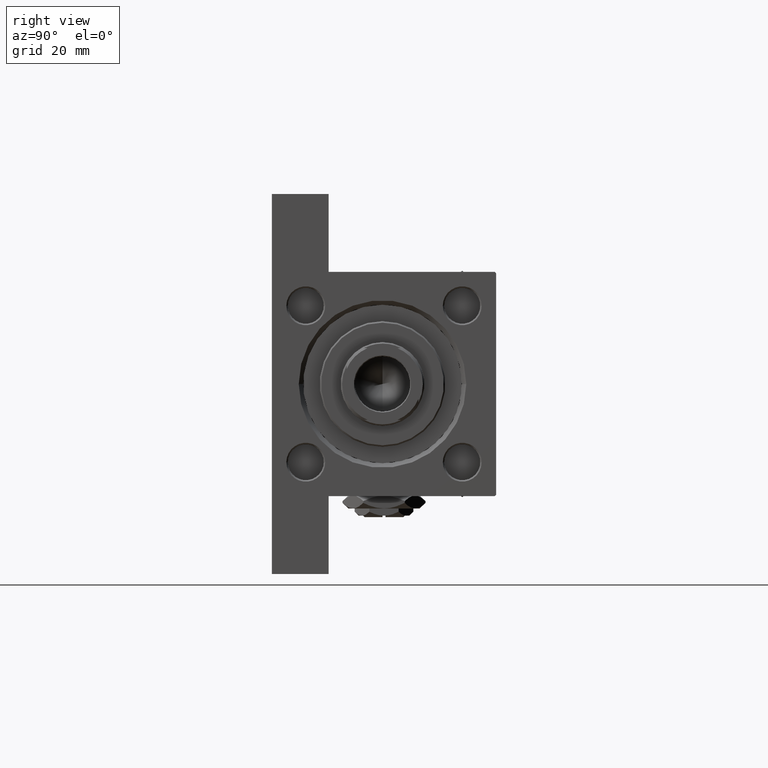
[diagram: clean part render]
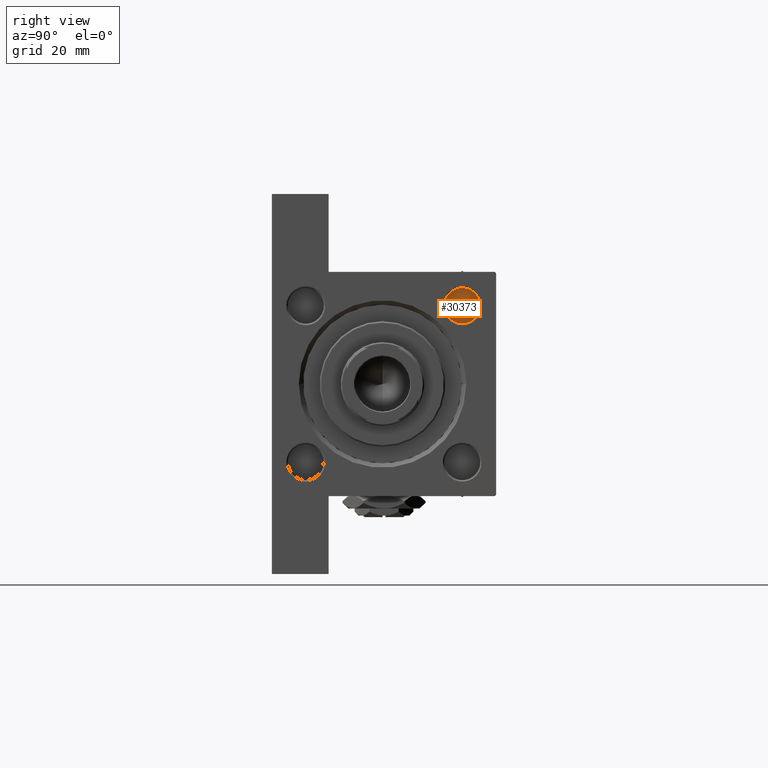
[diagram: same view with one face highlighted and labeled with its STEP entity id]
A machine part, right view. The second image highlights one B-rep face of the part: STEP entity #30373.
In plain terms, the highlighted planar face has unit normal (1, 0, 0).
Its self-contained STEP definition (entity closure, byte-faithful):
#448 = DIRECTION ( 'NONE',  ( 1.000000000000000000, 0.000000000000000000, 0.000000000000000000 ) ) ;
#3893 = CARTESIAN_POINT ( 'NONE',  ( 142.0000000000000000, -26.14999999999999147, 32.15000000000000568 ) ) ;
#4973 = DIRECTION ( 'NONE',  ( 0.000000000000000000, 0.000000000000000000, -1.000000000000000000 ) ) ;
#7736 = PLANE ( 'NONE',  #18364 ) ;
#8102 = EDGE_CURVE ( 'NONE', #47704, #18156, #40112, .T. ) ;
#12052 = CARTESIAN_POINT ( 'NONE',  ( 142.0000000000000000, -26.14999999999999147, 20.14999999999998792 ) ) ;
#15772 = DIRECTION ( 'NONE',  ( 0.000000000000000000, 0.000000000000000000, -1.000000000000000000 ) ) ;
#18156 = VERTEX_POINT ( 'NONE', #3893 ) ;
#18364 = AXIS2_PLACEMENT_3D ( 'NONE', #34883, #448, #15772 ) ;
#18434 = AXIS2_PLACEMENT_3D ( 'NONE', #47903, #31860, #4973 ) ;
#19554 = FACE_OUTER_BOUND ( 'NONE', #49029, .T. ) ;
#30373 = ADVANCED_FACE ( 'NONE', ( #19554 ), #7736, .T. ) ;
#31341 = AXIS2_PLACEMENT_3D ( 'NONE', #43731, #35950, #47241 ) ;
#31860 = DIRECTION ( 'NONE',  ( 1.000000000000000000, 0.000000000000000000, 0.000000000000000000 ) ) ;
#33093 = EDGE_CURVE ( 'NONE', #18156, #47704, #43260, .T. ) ;
#34883 = CARTESIAN_POINT ( 'NONE',  ( 142.0000000000000000, -26.14999999999999147, 26.14999999999999503 ) ) ;
#35004 = ORIENTED_EDGE ( 'NONE', *, *, #8102, .T. ) ;
#35950 = DIRECTION ( 'NONE',  ( 1.000000000000000000, 0.000000000000000000, 0.000000000000000000 ) ) ;
#37647 = ORIENTED_EDGE ( 'NONE', *, *, #33093, .T. ) ;
#40112 = CIRCLE ( 'NONE', #18434, 6.000000000000008882 ) ;
#43260 = CIRCLE ( 'NONE', #31341, 6.000000000000008882 ) ;
#43731 = CARTESIAN_POINT ( 'NONE',  ( 142.0000000000000000, -26.14999999999999147, 26.14999999999999503 ) ) ;
#47241 = DIRECTION ( 'NONE',  ( 0.000000000000000000, 0.000000000000000000, -1.000000000000000000 ) ) ;
#47704 = VERTEX_POINT ( 'NONE', #12052 ) ;
#47903 = CARTESIAN_POINT ( 'NONE',  ( 142.0000000000000000, -26.14999999999999147, 26.14999999999999503 ) ) ;
#49029 = EDGE_LOOP ( 'NONE', ( #35004, #37647 ) ) ;